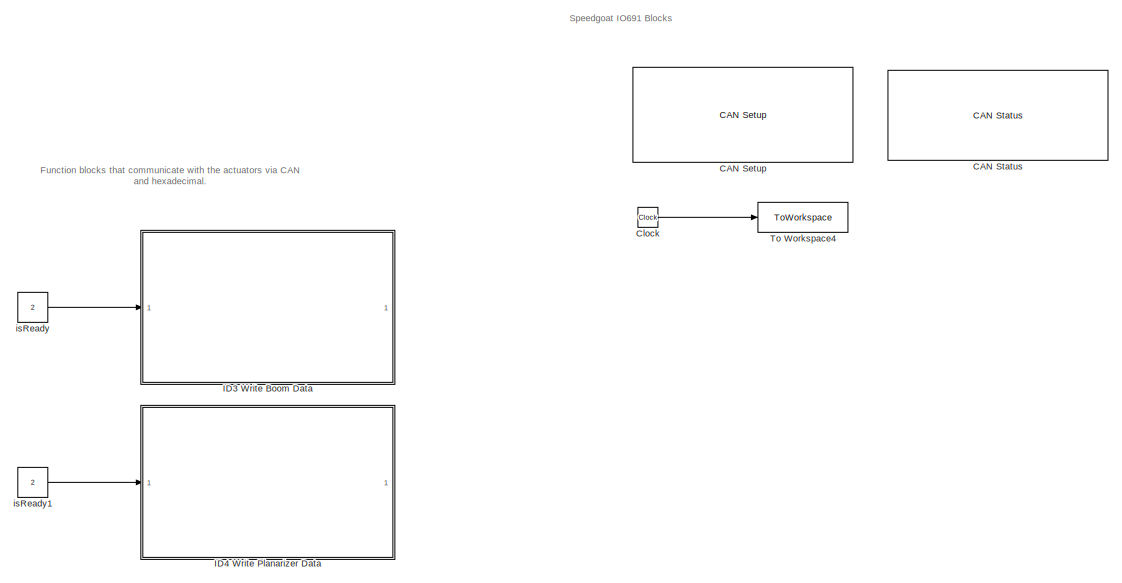
[diagram: root canvas - part 1/3, top right region]
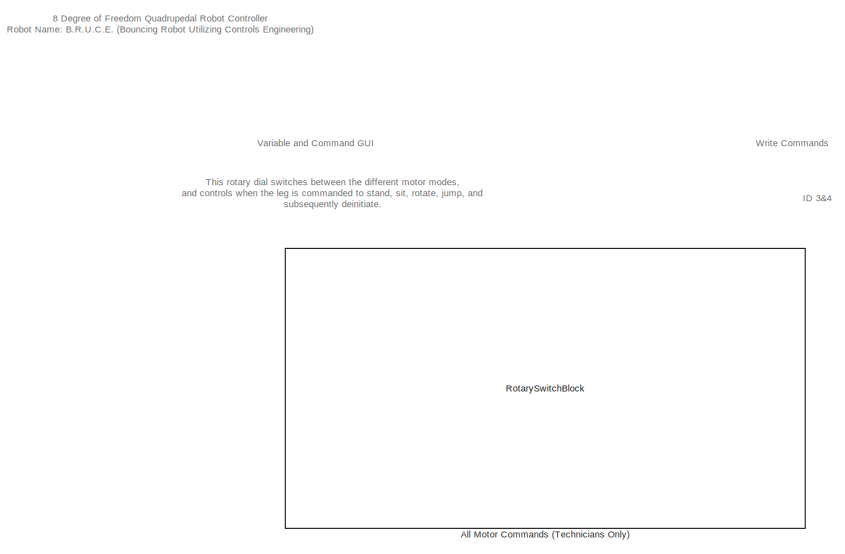
[diagram: root canvas - part 2/3, top left region]
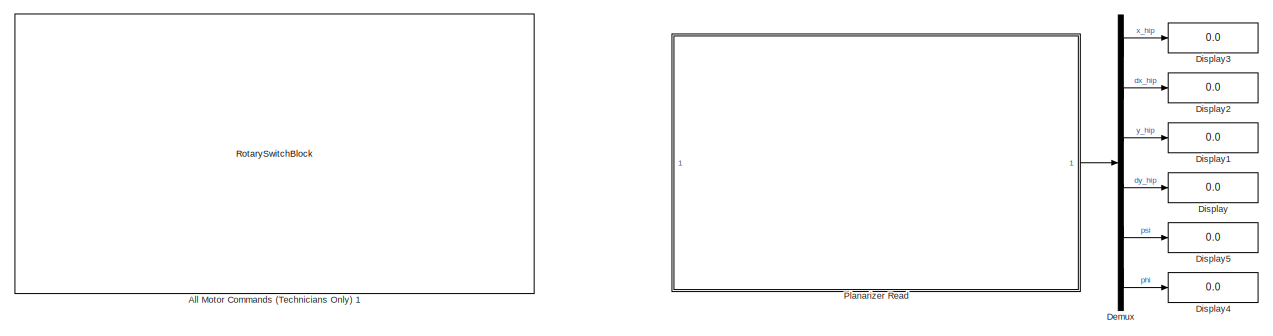
[diagram: root canvas - part 3/3, bottom center region]
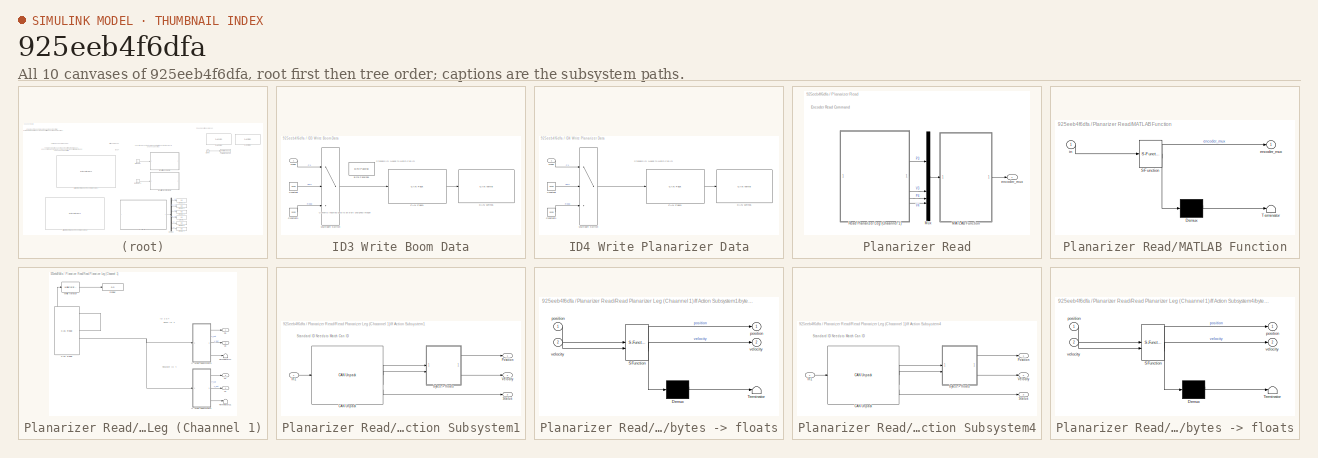
[diagram: thumbnail index - all 10 canvases of the model, root first then tree order]
MODEL slx_925eeb4f6dfa
KIND model
CONFIG AbsTol = auto
CONFIG EnableMultiTasking = off
CONFIG FixedStep = 0.005
CONFIG MaxStep = auto
CONFIG MinStep = auto
CONFIG RelTol = 1e-3
CONFIG SampleTimeConstraint = Unconstrained
CONFIG SolverName = FixedStepAuto
CONFIG StartTime = 0.0
CONFIG StopTime = inf
BLOCK [RotarySwitchBlock] All Motor Commands (Technicians Only) 
BLOCK [RotarySwitchBlock] All Motor Commands (Technicians Only) 1
BLOCK [Reference] CAN Setup   REF=speedgoatlib_IO691/Legacy/CAN Setup 
  SourceBlock = speedgoatlib_IO691/Legacy/CAN Setup
  SourceProductName = Simulink Real-Time: Speedgoat I/O Blockset
  SourceType = setup_IO691
BLOCK [Reference] CAN Status  REF=speedgoatlib_IO691/Legacy/CAN Status
  SourceBlock = speedgoatlib_IO691/Legacy/CAN Status
  SourceProductName = Simulink Real-Time: Speedgoat I/O Blockset
  SourceType = status_IO691
  UserDataPersistent = on
BLOCK [Clock] Clock
BLOCK [Demux] Demux
  Outputs = 6
BLOCK [Display] Display
  Decimation = 1
BLOCK [Display] Display1
  Decimation = 1
BLOCK [Display] Display2
  Decimation = 1
BLOCK [Display] Display3
  Decimation = 1
BLOCK [Display] Display4
  Decimation = 1
BLOCK [Display] Display5
  Decimation = 1
BLOCK [SubSystem] ID3 Write Boom Data
  TreatAsAtomicUnit = on
BLOCK [Reference] ID3 Write Boom Data/Byte Packing1  REF=slrealtimeutilitieslib/Byte Packing
  Commented = on
  SourceBlock = slrealtimeutilitieslib/Byte Packing
  SourceType = slrealtimebytepacking
BLOCK [Reference] ID3 Write Boom Data/CAN Pack1  REF=canmsglib/CAN Pack
  SourceBlock = canmsglib/CAN Pack
  SourceType = CAN Pack
BLOCK [Reference] ID3 Write Boom Data/CAN Write1  REF=speedgoatlib_IO691/Legacy/CAN Write
  SourceBlock = speedgoatlib_IO691/Legacy/CAN Write
  SourceProductName = Simulink Real-Time: Speedgoat I/O Blockset
  SourceType = write_IO691
BLOCK [Constant] ID3 Write Boom Data/Constant
  Value = 0x00
BLOCK [Constant] ID3 Write Boom Data/Constant1
  Value = 0x05
BLOCK [Inport] ID3 Write Boom Data/Mode
BLOCK [MultiPortSwitch] ID3 Write Boom Data/Multiport Switch
  DiagnosticForDefault = None
  InputSameDT = off
  Inputs = 2
  OutMin = 0
  SaturateOnIntegerOverflow = off
BLOCK [SubSystem] ID4 Write Planarizer Data
  TreatAsAtomicUnit = on
BLOCK [Reference] ID4 Write Planarizer Data/CAN Pack1  REF=canmsglib/CAN Pack
  SourceBlock = canmsglib/CAN Pack
  SourceType = CAN Pack
BLOCK [Reference] ID4 Write Planarizer Data/CAN Write1  REF=speedgoatlib_IO691/Legacy/CAN Write
  SourceBlock = speedgoatlib_IO691/Legacy/CAN Write
  SourceProductName = Simulink Real-Time: Speedgoat I/O Blockset
  SourceType = write_IO691
BLOCK [Constant] ID4 Write Planarizer Data/Constant
  Value = 0x00
BLOCK [Constant] ID4 Write Planarizer Data/Constant1
  Value = 0x05
BLOCK [Inport] ID4 Write Planarizer Data/Mode
BLOCK [MultiPortSwitch] ID4 Write Planarizer Data/Multiport Switch
  DiagnosticForDefault = None
  InputSameDT = off
  Inputs = 2
  SaturateOnIntegerOverflow = off
BLOCK [SubSystem] Planarizer Read
BLOCK [SubSystem] Planarizer Read/MATLAB Function
  ErrorFcn = Stateflow.Translate.translate
  LibrarySourceBlock = simulink/User-Defined\nFunctions/MATLAB Function
  PermitHierarchicalResolution = ExplicitOnly
  SFBlockType = MATLAB Function
  TreatAsAtomicUnit = on
BLOCK [Demux] Planarizer Read/MATLAB Function/ Demux 
  Outputs = 1
BLOCK [S-Function] Planarizer Read/MATLAB Function/ SFunction 
  EnableBusSupport = on
  FunctionName = sf_sfun
  PortCounts = [1 2]
  SFcnIsStateOwnerBlock = off
  SFunctionDeploymentMode = off
  Tag = Stateflow S-Function 7
BLOCK [Terminator] Planarizer Read/MATLAB Function/ Terminator 
BLOCK [Outport] Planarizer Read/MATLAB Function/encoder_mux
BLOCK [Inport] Planarizer Read/MATLAB Function/in
BLOCK [Mux] Planarizer Read/Mux
  DisplayOption = bar
BLOCK [SubSystem] Planarizer Read/Read Planarizer Leg (Chaannel 1)
  TreatAsAtomicUnit = on
BLOCK [Reference] Planarizer Read/Read Planarizer Leg (Chaannel 1)/CAN Read  REF=speedgoatlib_IO691/Legacy/CAN Read
  SourceBlock = speedgoatlib_IO691/Legacy/CAN Read
  SourceProductName = Simulink Real-Time: Speedgoat I/O Blockset
  SourceType = read_IO691
BLOCK [Display] Planarizer Read/Read Planarizer Leg (Chaannel 1)/Display
  Decimation = 1
BLOCK [SubSystem] Planarizer Read/Read Planarizer Leg (Chaannel 1)/If Action Subsystem1
  TreatAsAtomicUnit = on
BLOCK [Reference] Planarizer Read/Read Planarizer Leg (Chaannel 1)/If Action Subsystem1/CAN Unpack  REF=canmsglib/CAN Unpack
  SourceBlock = canmsglib/CAN Unpack
  SourceType = CAN Unpack
BLOCK [Inport] Planarizer Read/Read Planarizer Leg (Chaannel 1)/If Action Subsystem1/In1
BLOCK [Outport] Planarizer Read/Read Planarizer Leg (Chaannel 1)/If Action Subsystem1/Position
BLOCK [Outport] Planarizer Read/Read Planarizer Leg (Chaannel 1)/If Action Subsystem1/Status
  Port = 3
BLOCK [Outport] Planarizer Read/Read Planarizer Leg (Chaannel 1)/If Action Subsystem1/Velocity
  Port = 2
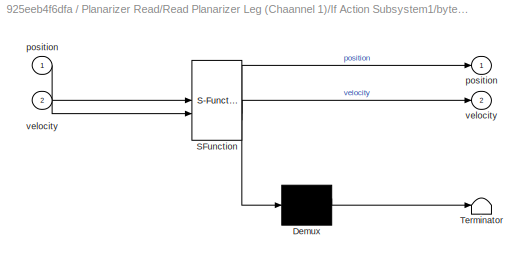
BLOCK [SubSystem] Planarizer Read/Read Planarizer Leg (Chaannel 1)/If Action Subsystem1/bytes -> floats
  ErrorFcn = Stateflow.Translate.translate
  PermitHierarchicalResolution = ExplicitOnly
  SFBlockType = MATLAB Function
  TreatAsAtomicUnit = on
BLOCK [Demux] Planarizer Read/Read Planarizer Leg (Chaannel 1)/If Action Subsystem1/bytes -> floats/ Demux 
  Outputs = 1
BLOCK [S-Function] Planarizer Read/Read Planarizer Leg (Chaannel 1)/If Action Subsystem1/bytes -> floats/ SFunction 
  EnableBusSupport = on
  FunctionName = sf_sfun
  PortCounts = [2 3]
  SFcnIsStateOwnerBlock = off
  SFunctionDeploymentMode = off
  Tag = Stateflow S-Function 10
BLOCK [Terminator] Planarizer Read/Read Planarizer Leg (Chaannel 1)/If Action Subsystem1/bytes -> floats/ Terminator 
BLOCK [Outport] Planarizer Read/Read Planarizer Leg (Chaannel 1)/If Action Subsystem1/bytes -> floats/position
BLOCK [Inport] Planarizer Read/Read Planarizer Leg (Chaannel 1)/If Action Subsystem1/bytes -> floats/position 
BLOCK [Outport] Planarizer Read/Read Planarizer Leg (Chaannel 1)/If Action Subsystem1/bytes -> floats/velocity
  Port = 2
BLOCK [Inport] Planarizer Read/Read Planarizer Leg (Chaannel 1)/If Action Subsystem1/bytes -> floats/velocity 
  Port = 2
BLOCK [SubSystem] Planarizer Read/Read Planarizer Leg (Chaannel 1)/If Action Subsystem4
  TreatAsAtomicUnit = on
BLOCK [Reference] Planarizer Read/Read Planarizer Leg (Chaannel 1)/If Action Subsystem4/CAN Unpack  REF=canmsglib/CAN Unpack
  SourceBlock = canmsglib/CAN Unpack
  SourceType = CAN Unpack
BLOCK [Inport] Planarizer Read/Read Planarizer Leg (Chaannel 1)/If Action Subsystem4/In1
BLOCK [Outport] Planarizer Read/Read Planarizer Leg (Chaannel 1)/If Action Subsystem4/Position
BLOCK [Outport] Planarizer Read/Read Planarizer Leg (Chaannel 1)/If Action Subsystem4/Status
  Port = 3
BLOCK [Outport] Planarizer Read/Read Planarizer Leg (Chaannel 1)/If Action Subsystem4/Velocity
  Port = 2
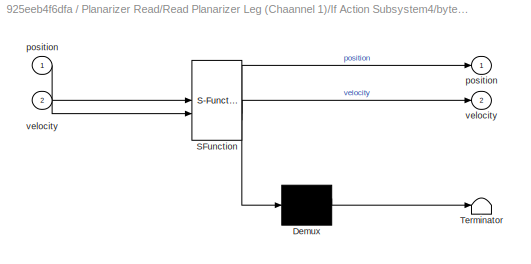
BLOCK [SubSystem] Planarizer Read/Read Planarizer Leg (Chaannel 1)/If Action Subsystem4/bytes -> floats
  ErrorFcn = Stateflow.Translate.translate
  PermitHierarchicalResolution = ExplicitOnly
  SFBlockType = MATLAB Function
  TreatAsAtomicUnit = on
BLOCK [Demux] Planarizer Read/Read Planarizer Leg (Chaannel 1)/If Action Subsystem4/bytes -> floats/ Demux 
  Outputs = 1
BLOCK [S-Function] Planarizer Read/Read Planarizer Leg (Chaannel 1)/If Action Subsystem4/bytes -> floats/ SFunction 
  EnableBusSupport = on
  FunctionName = sf_sfun
  PortCounts = [2 3]
  SFcnIsStateOwnerBlock = off
  SFunctionDeploymentMode = off
  Tag = Stateflow S-Function 11
BLOCK [Terminator] Planarizer Read/Read Planarizer Leg (Chaannel 1)/If Action Subsystem4/bytes -> floats/ Terminator 
BLOCK [Outport] Planarizer Read/Read Planarizer Leg (Chaannel 1)/If Action Subsystem4/bytes -> floats/position
BLOCK [Inport] Planarizer Read/Read Planarizer Leg (Chaannel 1)/If Action Subsystem4/bytes -> floats/position 
BLOCK [Outport] Planarizer Read/Read Planarizer Leg (Chaannel 1)/If Action Subsystem4/bytes -> floats/velocity
  Port = 2
BLOCK [Inport] Planarizer Read/Read Planarizer Leg (Chaannel 1)/If Action Subsystem4/bytes -> floats/velocity 
  Port = 2
BLOCK [Outport] Planarizer Read/Read Planarizer Leg (Chaannel 1)/P3
BLOCK [Outport] Planarizer Read/Read Planarizer Leg (Chaannel 1)/P4
  Port = 3
BLOCK [Terminator] Planarizer Read/Read Planarizer Leg (Chaannel 1)/Terminator17
BLOCK [Terminator] Planarizer Read/Read Planarizer Leg (Chaannel 1)/Terminator21
BLOCK [Outport] Planarizer Read/Read Planarizer Leg (Chaannel 1)/V3
  Port = 2
BLOCK [Outport] Planarizer Read/Read Planarizer Leg (Chaannel 1)/V4
  Port = 4
BLOCK [WhileIterator] Planarizer Read/Read Planarizer Leg (Chaannel 1)/While Iterator
  MaxIters = -1
  ResetStates = reset
  ShowIterationPort = on
  WhileBlockType = do-while
BLOCK [Outport] Planarizer Read/encoder_mux
BLOCK [ToWorkspace] To Workspace4
  FixptAsFi = on
  MaxDataPoints = inf
  SampleTime = -1
  VariableName = timeout
BLOCK [Constant] isReady
  Value = 2
BLOCK [Constant] isReady1
  Value = 2
ANNOTATION (root): 8 Degree of Freedom Quadrupedal Robot Controller Robot Name: B.R.U.C.E. (Bouncing Robot Utilizing Controls Engineering)
ANNOTATION (root): Function blocks that communicate with the actuators via CAN and hexadecimal.
ANNOTATION (root): ID 3&4
ANNOTATION (root): Speedgoat IO691 Blocks
ANNOTATION (root): This rotary dial switches between the different motor modes, and controls when the leg is commanded to stand, sit, rotate, jump, and subsequently deinitiate.
ANNOTATION (root): Variable and Command GUI
ANNOTATION (root): Write Commands
ANNOTATION ID3 Write Boom Data: Converts inputted data to an 8-bit unsigned integer
ANNOTATION ID3 Write Boom Data: Standard ID Needs to Match Can ID
ANNOTATION ID4 Write Planarizer Data: Standard ID Needs to Match Can ID
ANNOTATION Planarizer Read: Encoder Read Command
ANNOTATION Planarizer Read/Read Planarizer Leg (Chaannel 1): Boom ID 3
ANNOTATION Planarizer Read/Read Planarizer Leg (Chaannel 1): ID 3 & 4
ANNOTATION Planarizer Read/Read Planarizer Leg (Chaannel 1): Planarizer ID 4
ANNOTATION Planarizer Read/Read Planarizer Leg (Chaannel 1)/If Action Subsystem1: Standard ID Needs to Match Can ID
ANNOTATION Planarizer Read/Read Planarizer Leg (Chaannel 1)/If Action Subsystem4: Standard ID Needs to Match Can ID
LINE Clock:1 -> To Workspace4:1
LINE Demux:1 -> Display3:1
LINE Demux:2 -> Display2:1
LINE Demux:3 -> Display1:1
LINE Demux:4 -> Display:1
LINE Demux:5 -> Display5:1
LINE Demux:6 -> Display4:1
LINE ID3 Write Boom Data/CAN Pack1:1 -> ID3 Write Boom Data/CAN Write1:1
LINE ID3 Write Boom Data/Constant1:1 -> ID3 Write Boom Data/Multiport Switch:3
LINE ID3 Write Boom Data/Constant:1 -> ID3 Write Boom Data/Multiport Switch:2
LINE ID3 Write Boom Data/Mode:1 -> ID3 Write Boom Data/Multiport Switch:1
LINE ID3 Write Boom Data/Multiport Switch:1 -> ID3 Write Boom Data/CAN Pack1:1
LINE ID4 Write Planarizer Data/CAN Pack1:1 -> ID4 Write Planarizer Data/CAN Write1:1
LINE ID4 Write Planarizer Data/Constant1:1 -> ID4 Write Planarizer Data/Multiport Switch:3
LINE ID4 Write Planarizer Data/Constant:1 -> ID4 Write Planarizer Data/Multiport Switch:2
LINE ID4 Write Planarizer Data/Mode:1 -> ID4 Write Planarizer Data/Multiport Switch:1
LINE ID4 Write Planarizer Data/Multiport Switch:1 -> ID4 Write Planarizer Data/CAN Pack1:1
LINE Planarizer Read/MATLAB Function:1 -> Planarizer Read/encoder_mux:1
LINE Planarizer Read/Mux:1 -> Planarizer Read/MATLAB Function:1
LINE Planarizer Read/Read Planarizer Leg (Chaannel 1)/CAN Read:1 -> Planarizer Read/Read Planarizer Leg (Chaannel 1)/While Iterator:1
NET Planarizer Read/Read Planarizer Leg (Chaannel 1)/CAN Read:2 -> Planarizer Read/Read Planarizer Leg (Chaannel 1)/If Action Subsystem1:1, Planarizer Read/Read Planarizer Leg (Chaannel 1)/If Action Subsystem4:1
LINE Planarizer Read/Read Planarizer Leg (Chaannel 1)/If Action Subsystem1/CAN Unpack:1 -> Planarizer Read/Read Planarizer Leg (Chaannel 1)/If Action Subsystem1/bytes -> floats:1
LINE Planarizer Read/Read Planarizer Leg (Chaannel 1)/If Action Subsystem1/CAN Unpack:2 -> Planarizer Read/Read Planarizer Leg (Chaannel 1)/If Action Subsystem1/bytes -> floats:2
LINE Planarizer Read/Read Planarizer Leg (Chaannel 1)/If Action Subsystem1/CAN Unpack:3 -> Planarizer Read/Read Planarizer Leg (Chaannel 1)/If Action Subsystem1/Status:1
LINE Planarizer Read/Read Planarizer Leg (Chaannel 1)/If Action Subsystem1/In1:1 -> Planarizer Read/Read Planarizer Leg (Chaannel 1)/If Action Subsystem1/CAN Unpack:1
LINE Planarizer Read/Read Planarizer Leg (Chaannel 1)/If Action Subsystem1/bytes -> floats:1 -> Planarizer Read/Read Planarizer Leg (Chaannel 1)/If Action Subsystem1/Position:1
LINE Planarizer Read/Read Planarizer Leg (Chaannel 1)/If Action Subsystem1/bytes -> floats:2 -> Planarizer Read/Read Planarizer Leg (Chaannel 1)/If Action Subsystem1/Velocity:1
LINE Planarizer Read/Read Planarizer Leg (Chaannel 1)/If Action Subsystem1:1 -> Planarizer Read/Read Planarizer Leg (Chaannel 1)/P4:1
LINE Planarizer Read/Read Planarizer Leg (Chaannel 1)/If Action Subsystem1:2 -> Planarizer Read/Read Planarizer Leg (Chaannel 1)/V4:1
LINE Planarizer Read/Read Planarizer Leg (Chaannel 1)/If Action Subsystem1:3 -> Planarizer Read/Read Planarizer Leg (Chaannel 1)/Terminator21:1
LINE Planarizer Read/Read Planarizer Leg (Chaannel 1)/If Action Subsystem4/CAN Unpack:1 -> Planarizer Read/Read Planarizer Leg (Chaannel 1)/If Action Subsystem4/bytes -> floats:1
LINE Planarizer Read/Read Planarizer Leg (Chaannel 1)/If Action Subsystem4/CAN Unpack:2 -> Planarizer Read/Read Planarizer Leg (Chaannel 1)/If Action Subsystem4/bytes -> floats:2
LINE Planarizer Read/Read Planarizer Leg (Chaannel 1)/If Action Subsystem4/CAN Unpack:3 -> Planarizer Read/Read Planarizer Leg (Chaannel 1)/If Action Subsystem4/Status:1
LINE Planarizer Read/Read Planarizer Leg (Chaannel 1)/If Action Subsystem4/In1:1 -> Planarizer Read/Read Planarizer Leg (Chaannel 1)/If Action Subsystem4/CAN Unpack:1
LINE Planarizer Read/Read Planarizer Leg (Chaannel 1)/If Action Subsystem4/bytes -> floats:1 -> Planarizer Read/Read Planarizer Leg (Chaannel 1)/If Action Subsystem4/Position:1
LINE Planarizer Read/Read Planarizer Leg (Chaannel 1)/If Action Subsystem4/bytes -> floats:2 -> Planarizer Read/Read Planarizer Leg (Chaannel 1)/If Action Subsystem4/Velocity:1
LINE Planarizer Read/Read Planarizer Leg (Chaannel 1)/If Action Subsystem4:1 -> Planarizer Read/Read Planarizer Leg (Chaannel 1)/P3:1
LINE Planarizer Read/Read Planarizer Leg (Chaannel 1)/If Action Subsystem4:2 -> Planarizer Read/Read Planarizer Leg (Chaannel 1)/V3:1
LINE Planarizer Read/Read Planarizer Leg (Chaannel 1)/If Action Subsystem4:3 -> Planarizer Read/Read Planarizer Leg (Chaannel 1)/Terminator17:1
LINE Planarizer Read/Read Planarizer Leg (Chaannel 1)/While Iterator:1 -> Planarizer Read/Read Planarizer Leg (Chaannel 1)/Display:1
LINE Planarizer Read/Read Planarizer Leg (Chaannel 1):1 -> Planarizer Read/Mux:1
LINE Planarizer Read/Read Planarizer Leg (Chaannel 1):2 -> Planarizer Read/Mux:2
LINE Planarizer Read/Read Planarizer Leg (Chaannel 1):3 -> Planarizer Read/Mux:3
LINE Planarizer Read/Read Planarizer Leg (Chaannel 1):4 -> Planarizer Read/Mux:4
LINE Planarizer Read:1 -> Demux:1
LINE isReady1:1 -> ID4 Write Planarizer Data:1
LINE isReady:1 -> ID3 Write Boom Data:1
note: NET lines group one-source signal fan-out (src -> all destinations, sorted); 1:1 wires keep LINE
CHART Planarizer Read/MATLAB Function states=1 transitions=1
  STATE_LABEL 'eML_blk_kernel()'
  STATE_LABEL 'SCRIPT:\nfunction encoder_mux = Pol2Cart(in)\n\n% Variables\nphi         = in(1);    % Boom Angle\nphi_dot     = in(2);    % Boom Angular Velcoity\npsi         = in(3);    % Planarizer Angle\npsi_dot     = in(4);    % Planarizer Angular Velcoity\n\n% Parameters\nh           = .445;    % vertical height of base in meters\n%phi_offset  = .2376;        % Boom angle zero offset\nphi_offset  = .1995;        % Boom...<+331ch>'
CHART Planarizer Read/Read Planarizer Leg (Chaannel 1)/If Action
Subsystem1/bytes -> floats states=1 transitions=1
  STATE_LABEL 'eML_blk_kernel()'
  STATE_LABEL 'SCRIPT:\nfunction [position, velocity] = fcn(position, velocity)\n\nCPR  = 40000  % [Counts Per Revolution]\n\nposition = position/CPR*(2*pi());\nvelocity = velocity/CPR*(2*pi());'
CHART Planarizer Read/Read Planarizer Leg (Chaannel 1)/If Action
Subsystem4/bytes -> floats states=1 transitions=1
  STATE_LABEL 'eML_blk_kernel()'
  STATE_LABEL 'SCRIPT:\nfunction [position, velocity] = fcn(position, velocity)\n\nCPR  = 40000;  % [Counts Per Revolution]\n\nposition = position/CPR*(2*pi());\nvelocity = velocity/CPR*(2*pi());'
CHART  states=0 transitions=0
CHART  states=0 transitions=0
CHART  states=0 transitions=0
